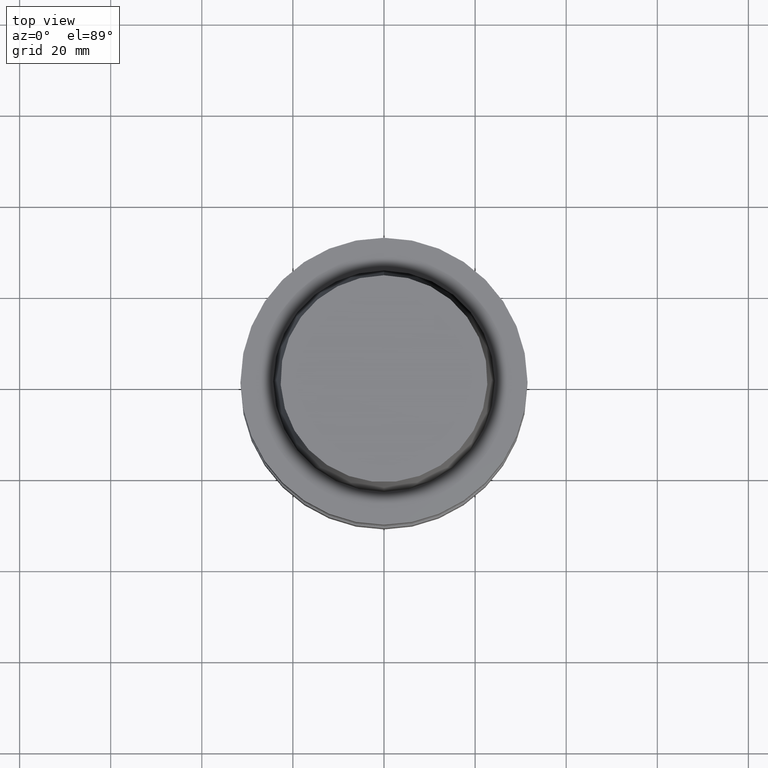
[diagram: clean part render]
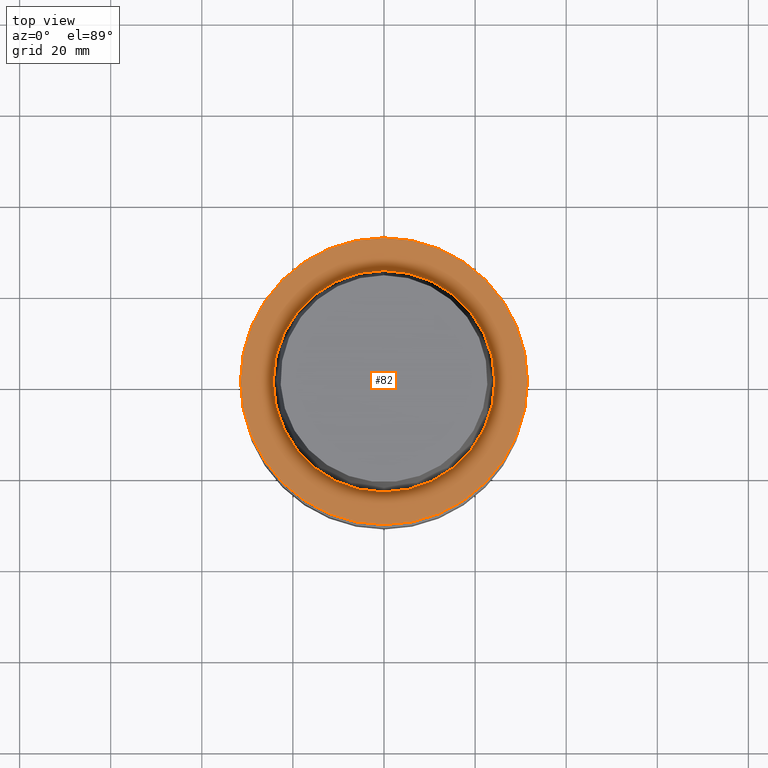
[diagram: same view with one face highlighted and labeled with its STEP entity id]
A machine part, top view. The second image highlights one B-rep face of the part: STEP entity #82.
In plain terms, the highlighted planar face has unit normal (-0, -0, 1).
Its self-contained STEP definition (entity closure, byte-faithful):
#75=EDGE_CURVE('Unnamed[1]',#189,#189,#190,.T.);
#79=EDGE_CURVE('Unnamed[1]',#195,#195,#196,.T.);
#82=ADVANCED_FACE('Unnamed[1]',(#199,#200),#201,.T.);
#189=VERTEX_POINT('',#343);
#190=CIRCLE('',#344,24.315);
#195=VERTEX_POINT('',#351);
#196=CIRCLE('',#352,31.5000000000001);
#199=FACE_BOUND('',#356,.T.);
#200=FACE_OUTER_BOUND('',#357,.T.);
#201=PLANE('',#358);
#343=CARTESIAN_POINT('',(-2.99705514225764E-031,24.315,2.97772869212679E-015));
#344=AXIS2_PLACEMENT_3D('',#514,#515,#516);
#351=CARTESIAN_POINT('',(-3.88267476788467E-031,31.5000000000001,3.85763741731417E-015));
#352=AXIS2_PLACEMENT_3D('',#520,#521,#522);
#356=EDGE_LOOP('',(#524));
#357=EDGE_LOOP('',(#525));
#358=AXIS2_PLACEMENT_3D('',#526,#527,#528);
#514=CARTESIAN_POINT('',(0.0,0.0,0.0));
#515=DIRECTION('',(-6.12323399573677E-017,-1.22464679914735E-016,1.0));
#516=DIRECTION('',(-1.23259516440783E-032,1.0,1.22464679914735E-016));
#520=CARTESIAN_POINT('',(0.0,0.0,0.0));
#521=DIRECTION('',(-6.12323399573677E-017,-1.22464679914735E-016,1.0));
#522=DIRECTION('',(-1.23259516440783E-032,1.0,1.22464679914735E-016));
#524=ORIENTED_EDGE('',*,*,#75,.F.);
#525=ORIENTED_EDGE('',*,*,#79,.T.);
#526=CARTESIAN_POINT('',(-3.43986495507116E-031,27.9075,3.41768305472048E-015));
#527=DIRECTION('',(-6.12323399573677E-017,-1.22464679914735E-016,1.0));
#528=DIRECTION('',(-1.23259516440783E-032,1.0,1.22464679914735E-016));